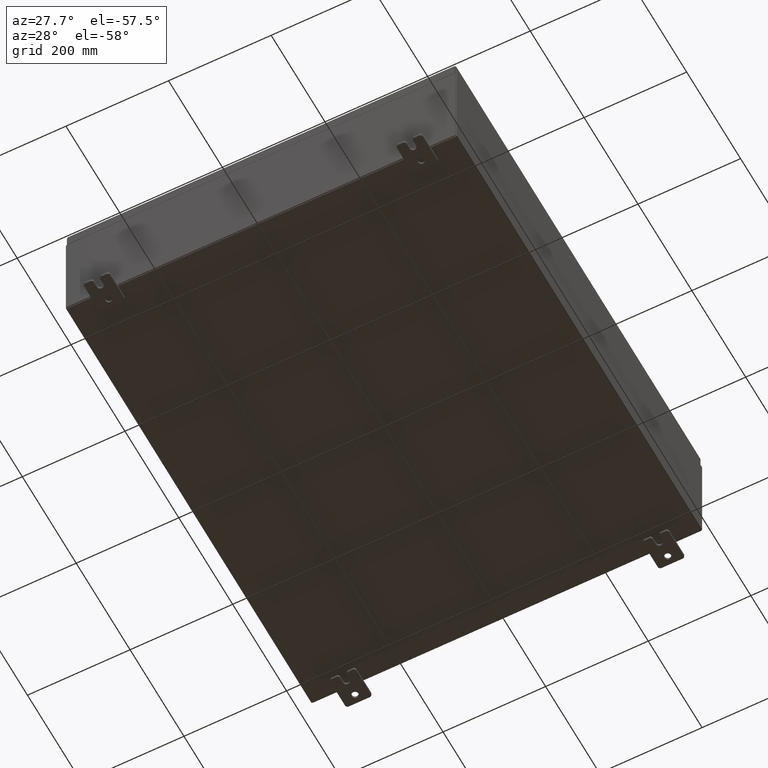
[diagram: clean part render]
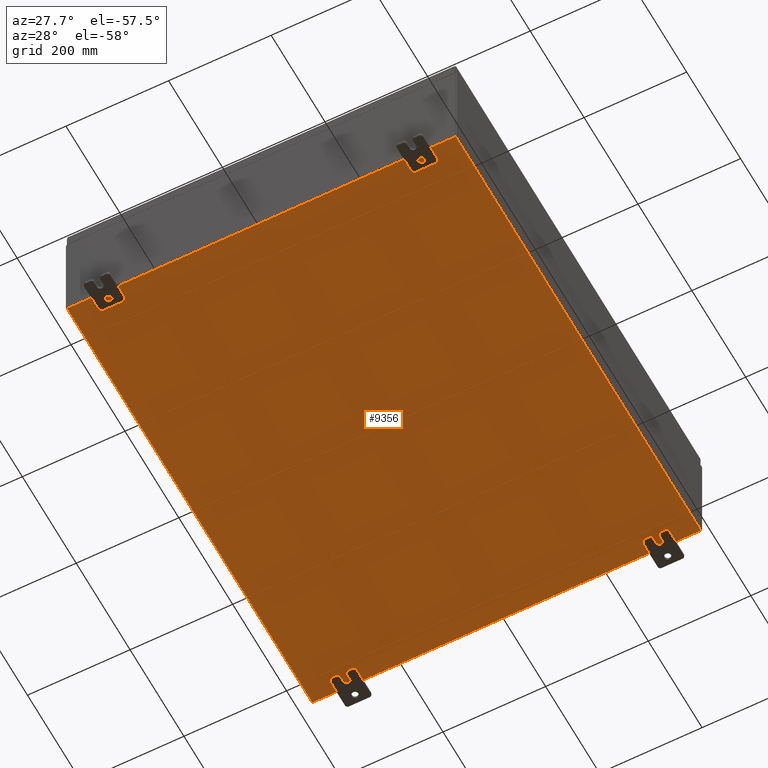
[diagram: same view with one face highlighted and labeled with its STEP entity id]
A machine part, auxiliary view. The second image highlights one B-rep face of the part: STEP entity #9356.
In plain terms, the highlighted planar face has unit normal (0, 0, -1).
Its self-contained STEP definition (entity closure, byte-faithful):
#2144 = DIRECTION ( 'NONE',  ( -0.0000000000000000000, 1.000000000000000000, -0.0000000000000000000 ) ) ;
#2753 = LINE ( 'NONE', #32576, #16304 ) ;
#2936 = FACE_OUTER_BOUND ( 'NONE', #56664, .T. ) ;
#9356 = ADVANCED_FACE ( 'NONE', ( #2936 ), #36516, .T. ) ;
#11653 = EDGE_CURVE ( 'NONE', #62117, #18646, #28297, .T. ) ;
#12823 = VERTEX_POINT ( 'NONE', #29275 ) ;
#13048 = CARTESIAN_POINT ( 'NONE',  ( -14.91230000000000200, -17.92530000000000000, -0.07469999999999994700 ) ) ;
#13934 = ORIENTED_EDGE ( 'NONE', *, *, #11653, .T. ) ;
#15957 = CARTESIAN_POINT ( 'NONE',  ( -15.00000000000000400, -17.92530000000000000, -0.07470000000000000300 ) ) ;
#16108 = DIRECTION ( 'NONE',  ( -0.0000000000000000000, -1.000000000000000000, 8.208677865577646300E-017 ) ) ;
#16133 = AXIS2_PLACEMENT_3D ( 'NONE', #21422, #57074, #26530 ) ;
#16304 = VECTOR ( 'NONE', #2144, 39.37007874015748100 ) ;
#16937 = ORIENTED_EDGE ( 'NONE', *, *, #41394, .F. ) ;
#18646 = VERTEX_POINT ( 'NONE', #24269 ) ;
#19181 = VECTOR ( 'NONE', #36117, 39.37007874015748100 ) ;
#20793 = VERTEX_POINT ( 'NONE', #13048 ) ;
#21422 = CARTESIAN_POINT ( 'NONE',  ( 0.0000000000000000000, 0.0000000000000000000, -0.07470000000000000300 ) ) ;
#22377 = EDGE_CURVE ( 'NONE', #62117, #12823, #62149, .T. ) ;
#24269 = CARTESIAN_POINT ( 'NONE',  ( 14.91229999999999800, -17.92530000000000000, -0.07470000000000000300 ) ) ;
#26288 = CARTESIAN_POINT ( 'NONE',  ( 14.91229999999999800, 17.92530000000000000, -0.07470000000000251400 ) ) ;
#26530 = DIRECTION ( 'NONE',  ( -1.000000000000000000, 0.0000000000000000000, -0.0000000000000000000 ) ) ;
#28189 = CARTESIAN_POINT ( 'NONE',  ( -15.00000000000000400, 17.92530000000000000, -0.07470000000000000300 ) ) ;
#28297 = LINE ( 'NONE', #26288, #40232 ) ;
#29275 = CARTESIAN_POINT ( 'NONE',  ( -14.91230000000000200, 17.92530000000000000, -0.07470000000000000300 ) ) ;
#32576 = CARTESIAN_POINT ( 'NONE',  ( -14.91230000000000200, -17.92530000000000000, -0.07469999999999994700 ) ) ;
#33314 = DIRECTION ( 'NONE',  ( -1.000000000000000000, -0.0000000000000000000, -0.0000000000000000000 ) ) ;
#36117 = DIRECTION ( 'NONE',  ( 1.000000000000000000, 0.0000000000000000000, 0.0000000000000000000 ) ) ;
#36516 = PLANE ( 'NONE',  #16133 ) ;
#38627 = EDGE_CURVE ( 'NONE', #20793, #12823, #2753, .T. ) ;
#39992 = ORIENTED_EDGE ( 'NONE', *, *, #22377, .F. ) ;
#40232 = VECTOR ( 'NONE', #16108, 39.37007874015748100 ) ;
#41394 = EDGE_CURVE ( 'NONE', #20793, #18646, #59834, .T. ) ;
#48651 = VECTOR ( 'NONE', #33314, 39.37007874015748100 ) ;
#51222 = ORIENTED_EDGE ( 'NONE', *, *, #38627, .T. ) ;
#55487 = CARTESIAN_POINT ( 'NONE',  ( 14.91229999999999800, 17.92530000000000000, -0.07470000000000251400 ) ) ;
#56664 = EDGE_LOOP ( 'NONE', ( #16937, #51222, #39992, #13934 ) ) ;
#57074 = DIRECTION ( 'NONE',  ( 0.0000000000000000000, 0.0000000000000000000, -1.000000000000000000 ) ) ;
#59834 = LINE ( 'NONE', #15957, #19181 ) ;
#62117 = VERTEX_POINT ( 'NONE', #55487 ) ;
#62149 = LINE ( 'NONE', #28189, #48651 ) ;